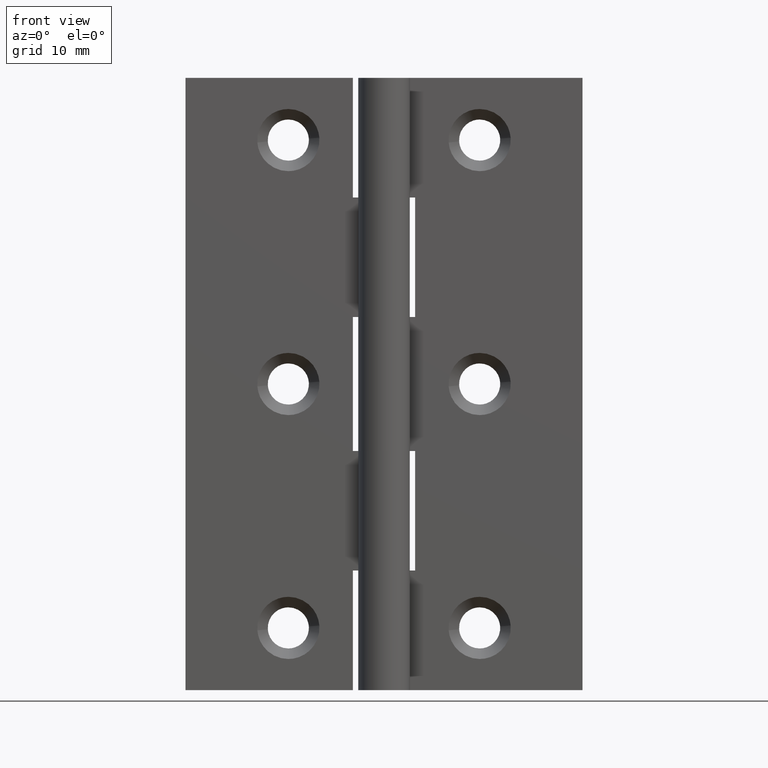
[diagram: clean part render]
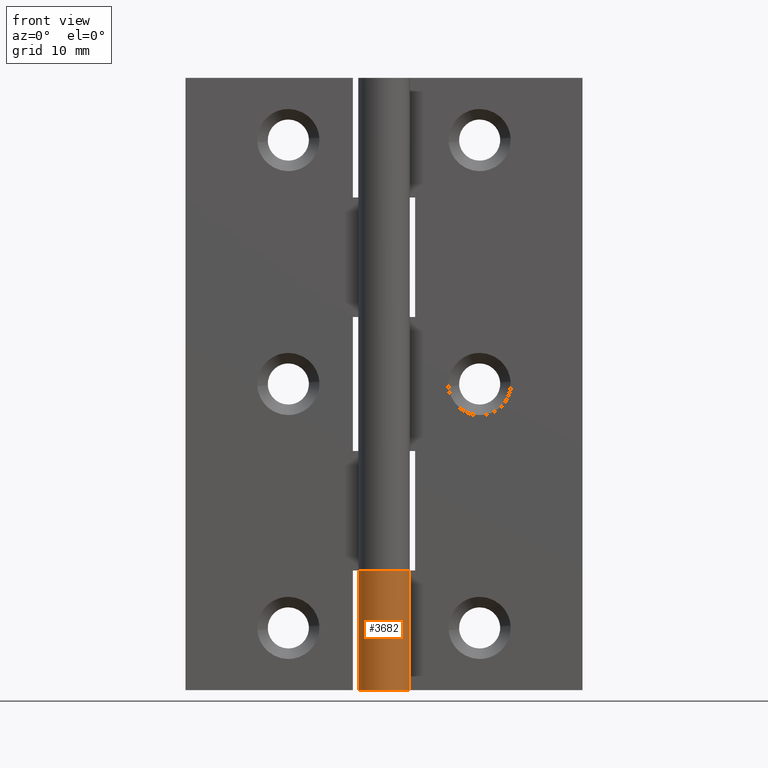
[diagram: same view with one face highlighted and labeled with its STEP entity id]
A machine part, front view. The second image highlights one B-rep face of the part: STEP entity #3682.
In plain terms, the highlighted face is a freeform B-spline surface patch.
Its self-contained STEP definition (entity closure, byte-faithful):
#3234=CARTESIAN_POINT('',(0.0,2.700001000000000,12.499999999999799));
#3235=VERTEX_POINT('',#3234);
#3241=CARTESIAN_POINT('',(2.277608394786080,1.450000000000000,12.499999999999719));
#3242=VERTEX_POINT('',#3241);
#3243=CARTESIAN_POINT('',(0.0,2.700001000000000,12.499999999999799));
#3244=CARTESIAN_POINT('',(-2.095109977493334,2.700001706939267,12.499999999999856));
#3245=CARTESIAN_POINT('',(-2.615415091760208,0.670526597772460,12.499999999999840));
#3246=CARTESIAN_POINT('',(-3.135720206027082,-1.358948511394346,12.499999999999822));
#3247=CARTESIAN_POINT('',(-1.299038105676659,-2.366959575708922,12.499999999999760));
#3248=CARTESIAN_POINT('',(0.537643994673764,-3.374970640023498,12.499999999999694));
#3249=CARTESIAN_POINT('',(1.970202022019797,-1.846159761025621,12.499999999999680));
#3250=CARTESIAN_POINT('',(3.402760049365831,-0.317348882027742,12.499999999999662));
#3251=CARTESIAN_POINT('',(2.277608394786080,1.450000000000000,12.499999999999719));
#3259=(BOUNDED_CURVE()B_SPLINE_CURVE(2,(#3243,#3244,#3245,#3246,#3247,#3248,#3249,#3250,#3251),.UNSPECIFIED.,.F.,.U.)B_SPLINE_CURVE_WITH_KNOTS((3,2,2,2,3),(0.0,0.250000000000000,0.500000000000000,0.750000000000000,1.0),.UNSPECIFIED.)CURVE()GEOMETRIC_REPRESENTATION_ITEM()RATIONAL_B_SPLINE_CURVE((1.0,0.790045133626194,1.0,0.790045133626194,1.0,0.790045133626194,1.0,0.790045133626194,1.0))REPRESENTATION_ITEM(''));
#3260=EDGE_CURVE('',#3235,#3242,#3259,.T.);
#3481=CARTESIAN_POINT('',(2.277608394786080,1.450000000000000,0.0));
#3482=VERTEX_POINT('',#3481);
#3488=CARTESIAN_POINT('',(0.0,2.700001000000000,0.0));
#3489=VERTEX_POINT('',#3488);
#3490=CARTESIAN_POINT('',(2.277608394786080,1.450000000000000,0.0));
#3491=CARTESIAN_POINT('',(3.402760049365833,-0.317348882027743,0.0));
#3492=CARTESIAN_POINT('',(1.970202022019799,-1.846159761025622,0.0));
#3493=CARTESIAN_POINT('',(0.537643994673765,-3.374970640023501,0.0));
#3494=CARTESIAN_POINT('',(-1.299038105676659,-2.366959575708922,0.0));
#3495=CARTESIAN_POINT('',(-3.135720206027081,-1.358948511394346,0.0));
#3496=CARTESIAN_POINT('',(-2.615415091760209,0.670526597772459,0.0));
#3497=CARTESIAN_POINT('',(-2.095109977493337,2.700001706939268,0.0));
#3498=CARTESIAN_POINT('',(0.0,2.700001000000000,0.0));
#3506=(BOUNDED_CURVE()B_SPLINE_CURVE(2,(#3490,#3491,#3492,#3493,#3494,#3495,#3496,#3497,#3498),.UNSPECIFIED.,.F.,.U.)B_SPLINE_CURVE_WITH_KNOTS((3,2,2,2,3),(0.0,0.250000000000000,0.500000000000000,0.750000000000000,1.0),.UNSPECIFIED.)CURVE()GEOMETRIC_REPRESENTATION_ITEM()RATIONAL_B_SPLINE_CURVE((1.0,0.790045133626194,1.0,0.790045133626194,1.0,0.790045133626194,1.0,0.790045133626194,1.0))REPRESENTATION_ITEM(''));
#3507=EDGE_CURVE('',#3482,#3489,#3506,.T.);
#3625=CARTESIAN_POINT('',(2.277608394786080,1.450000000000000,0.0));
#3626=CARTESIAN_POINT('',(2.277608394786080,1.450000000000000,12.499999999999719));
#3627=QUASI_UNIFORM_CURVE('',1,(#3625,#3626),.UNSPECIFIED.,.F.,.U.);
#3628=EDGE_CURVE('',#3482,#3242,#3627,.T.);
#3650=CARTESIAN_POINT('',(2.225140709279442,1.529296839697048,-0.312499999999996));
#3651=CARTESIAN_POINT('',(2.225140709279442,1.529296839697048,12.820312499999840));
#3652=CARTESIAN_POINT('',(4.147730332970872,-1.268088421205942,-0.312499999999996));
#3653=CARTESIAN_POINT('',(4.147730332970872,-1.268088421205942,12.820312499999838));
#3654=CARTESIAN_POINT('',(0.989553312155601,-2.512127433551466,-0.312499999999996));
#3655=CARTESIAN_POINT('',(0.989553312155601,-2.512127433551466,12.820312499999840));
#3656=CARTESIAN_POINT('',(-2.168623708659669,-3.756166445896991,-0.312499999999996));
#3657=CARTESIAN_POINT('',(-2.168623708659669,-3.756166445896991,12.820312499999838));
#3658=CARTESIAN_POINT('',(-2.670342831077175,-0.399085410049946,-0.312499999999996));
#3659=CARTESIAN_POINT('',(-2.670342831077175,-0.399085410049946,12.820312499999840));
#3660=CARTESIAN_POINT('',(-3.172061953494680,2.957995625797097,-0.312499999999996));
#3661=CARTESIAN_POINT('',(-3.172061953494680,2.957995625797097,12.820312499999838));
#3662=CARTESIAN_POINT('',(0.211839558465185,2.691676801079445,-0.312499999999996));
#3663=CARTESIAN_POINT('',(0.211839558465185,2.691676801079445,12.820312499999840));
#3671=(BOUNDED_SURFACE()B_SPLINE_SURFACE(1,2,((#3650,#3652,#3654,#3656,#3658,#3660,#3662),(#3651,#3653,#3655,#3657,#3659,#3661,#3663)),.UNSPECIFIED.,.F.,.F.,.U.)B_SPLINE_SURFACE_WITH_KNOTS((2,2),(3,2,2,3),(0.0,13.132812499999840),(0.0,5.209301600829762,10.418603201659520,15.627904802489290),.UNSPECIFIED.)GEOMETRIC_REPRESENTATION_ITEM()RATIONAL_B_SPLINE_SURFACE(((1.0,0.622514636637620,1.0,0.622514636637620,1.0,0.622514636637620,1.0),(1.0,0.622514636637620,1.0,0.622514636637620,1.0,0.622514636637620,1.0)))REPRESENTATION_ITEM('')SURFACE());
#3672=ORIENTED_EDGE('',*,*,#3260,.F.);
#3673=CARTESIAN_POINT('',(0.0,2.700001000000000,0.0));
#3674=CARTESIAN_POINT('',(0.0,2.700001000000000,12.499999999999799));
#3675=QUASI_UNIFORM_CURVE('',1,(#3673,#3674),.UNSPECIFIED.,.F.,.U.);
#3676=EDGE_CURVE('',#3489,#3235,#3675,.T.);
#3677=ORIENTED_EDGE('',*,*,#3676,.F.);
#3678=ORIENTED_EDGE('',*,*,#3507,.F.);
#3679=ORIENTED_EDGE('',*,*,#3628,.T.);
#3680=EDGE_LOOP('',(#3672,#3677,#3678,#3679));
#3681=FACE_OUTER_BOUND('',#3680,.T.);
#3682=ADVANCED_FACE('',(#3681),#3671,.T.);